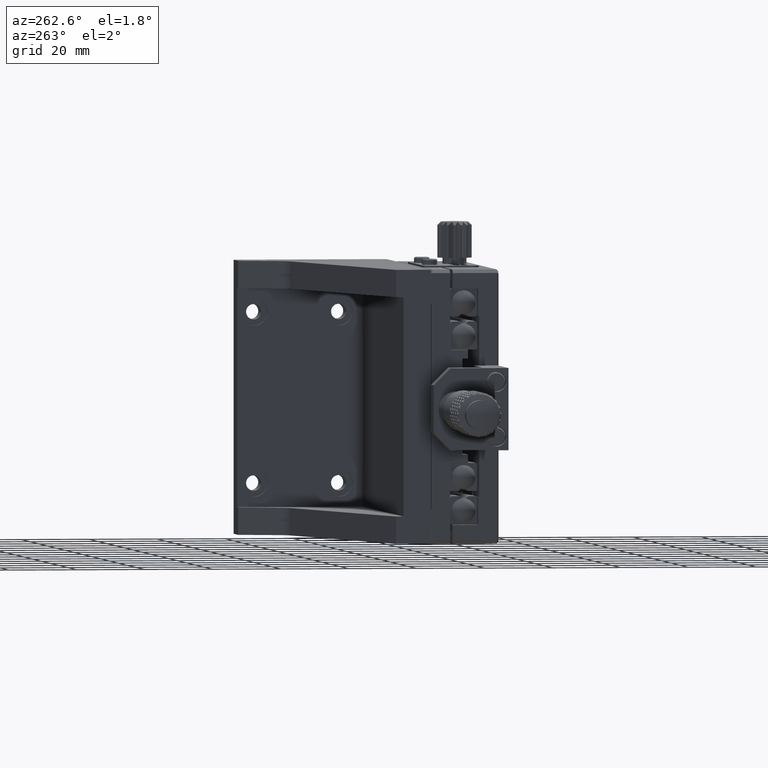
[diagram: clean part render]
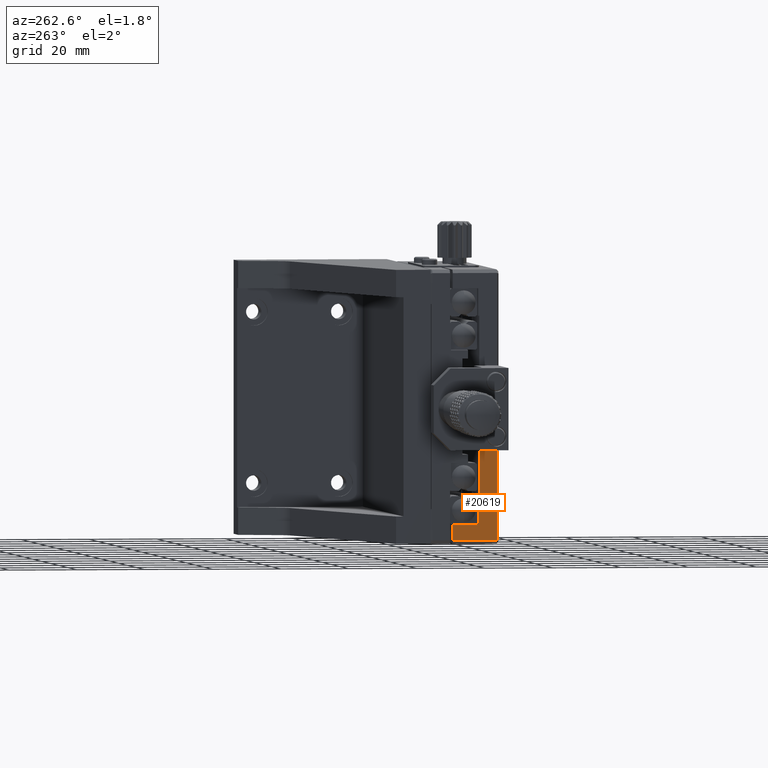
[diagram: same view with one face highlighted and labeled with its STEP entity id]
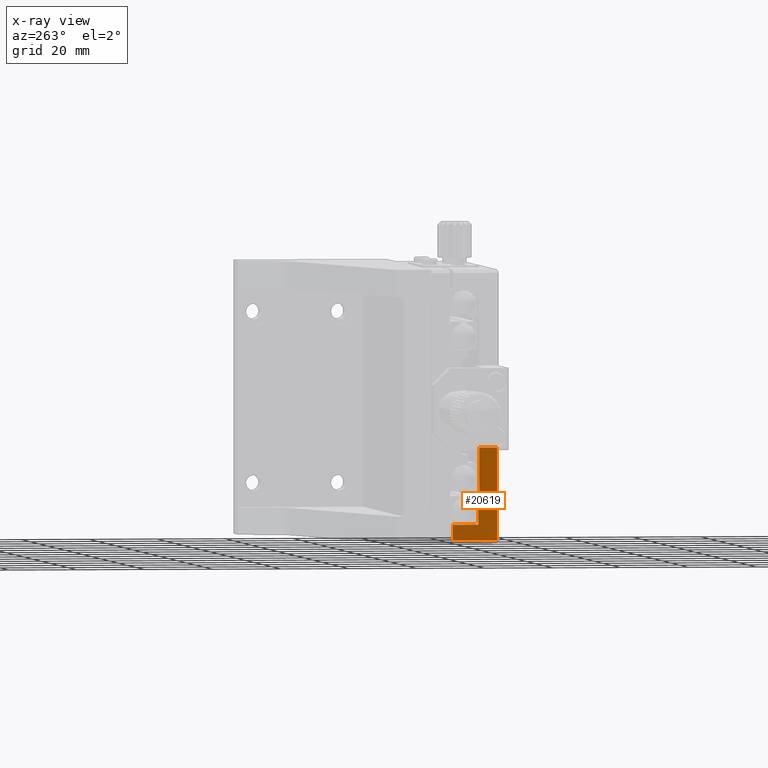
[diagram: x-ray of the same camera — body ghosted, the highlighted face saturated]
A machine part, auxiliary view. The second image highlights one B-rep face of the part: STEP entity #20619.
The next image is the same camera in x-ray: the body ghosted, the highlighted face saturated — about 2% of this face is hidden behind the body in this view.
In plain terms, the highlighted planar face has unit normal (1, 0, 0).
Its self-contained STEP definition (entity closure, byte-faithful):
#341 = DIRECTION ( 'NONE',  ( -0.000000000000000000, -0.000000000000000000, 1.000000000000000000 ) ) ;
#2726 = DIRECTION ( 'NONE',  ( 0.000000000000000000, -1.000000000000000000, -0.000000000000000000 ) ) ;
#3491 = CARTESIAN_POINT ( 'NONE',  ( 24.49999999999999289, 13.19999999999999929, -34.50000000000000000 ) ) ;
#3875 = EDGE_LOOP ( 'NONE', ( #38933, #15681, #38762, #21104, #21451, #15297, #50204, #5662 ) ) ;
#5238 = VERTEX_POINT ( 'NONE', #7315 ) ;
#5662 = ORIENTED_EDGE ( 'NONE', *, *, #32419, .F. ) ;
#5740 = VECTOR ( 'NONE', #23017, 1000.000000000000000 ) ;
#7123 = VECTOR ( 'NONE', #341, 1000.000000000000000 ) ;
#7315 = CARTESIAN_POINT ( 'NONE',  ( 24.49999999999999289, 5.700000000000000178, -34.50000000000000000 ) ) ;
#7849 = CARTESIAN_POINT ( 'NONE',  ( 24.50000000000000000, 5.400000000000000355, -39.00000000000000000 ) ) ;
#8019 = VECTOR ( 'NONE', #23352, 1000.000000000000000 ) ;
#9513 = EDGE_CURVE ( 'NONE', #43843, #12573, #40754, .T. ) ;
#10041 = VECTOR ( 'NONE', #30646, 1000.000000000000000 ) ;
#11480 = CARTESIAN_POINT ( 'NONE',  ( 24.50000000000000000, 14.69999999999999929, -39.00000000000000000 ) ) ;
#11615 = LINE ( 'NONE', #38965, #14733 ) ;
#12573 = VERTEX_POINT ( 'NONE', #15833 ) ;
#13193 = DIRECTION ( 'NONE',  ( -0.000000000000000000, -0.000000000000000000, 1.000000000000000000 ) ) ;
#14733 = VECTOR ( 'NONE', #27057, 1000.000000000000000 ) ;
#14785 = DIRECTION ( 'NONE',  ( 1.000000000000000000, 0.000000000000000000, 0.000000000000000000 ) ) ;
#15297 = ORIENTED_EDGE ( 'NONE', *, *, #41314, .F. ) ;
#15681 = ORIENTED_EDGE ( 'NONE', *, *, #24738, .T. ) ;
#15833 = CARTESIAN_POINT ( 'NONE',  ( 24.50000000000000000, 0.2000000000000008993, -11.99999999999999645 ) ) ;
#16116 = AXIS2_PLACEMENT_3D ( 'NONE', #11480, #14785, #23412 ) ;
#16526 = DIRECTION ( 'NONE',  ( -0.000000000000000000, 1.000000000000000000, 0.000000000000000000 ) ) ;
#16623 = EDGE_CURVE ( 'NONE', #43148, #48304, #32724, .T. ) ;
#17391 = VECTOR ( 'NONE', #2726, 1000.000000000000000 ) ;
#19199 = LINE ( 'NONE', #30321, #5740 ) ;
#20619 = ADVANCED_FACE ( 'NONE', ( #30205 ), #30968, .F. ) ;
#21010 = EDGE_CURVE ( 'NONE', #49937, #43843, #42818, .T. ) ;
#21104 = ORIENTED_EDGE ( 'NONE', *, *, #21010, .F. ) ;
#21402 = LINE ( 'NONE', #25193, #10041 ) ;
#21451 = ORIENTED_EDGE ( 'NONE', *, *, #46448, .F. ) ;
#22589 = CARTESIAN_POINT ( 'NONE',  ( 24.50000000000000000, 5.400000000000000355, -12.00000000000000000 ) ) ;
#22734 = VERTEX_POINT ( 'NONE', #3491 ) ;
#23017 = DIRECTION ( 'NONE',  ( 0.000000000000000000, -1.000000000000000000, -0.000000000000000000 ) ) ;
#23352 = DIRECTION ( 'NONE',  ( -0.000000000000000000, -0.000000000000000000, 1.000000000000000000 ) ) ;
#23412 = DIRECTION ( 'NONE',  ( 0.000000000000000000, 0.000000000000000000, -1.000000000000000000 ) ) ;
#23877 = VECTOR ( 'NONE', #13193, 1000.000000000000000 ) ;
#24171 = VECTOR ( 'NONE', #16526, 1000.000000000000000 ) ;
#24445 = LINE ( 'NONE', #27216, #7123 ) ;
#24738 = EDGE_CURVE ( 'NONE', #43148, #12573, #11615, .T. ) ;
#25105 = LINE ( 'NONE', #47421, #23877 ) ;
#25193 = CARTESIAN_POINT ( 'NONE',  ( 24.49999999999999289, 5.400000000000000355, -26.50000000000000000 ) ) ;
#27057 = DIRECTION ( 'NONE',  ( 0.000000000000000000, 0.000000000000000000, 1.000000000000000000 ) ) ;
#27216 = CARTESIAN_POINT ( 'NONE',  ( 24.50000000000000000, 5.700000000000000178, -39.00000000000000000 ) ) ;
#27711 = CARTESIAN_POINT ( 'NONE',  ( 24.49999999999999289, 5.399999999999999467, -26.50000000000000000 ) ) ;
#28478 = CARTESIAN_POINT ( 'NONE',  ( 24.50000000000000000, 13.19999999999999929, -39.00000000000000000 ) ) ;
#29331 = CARTESIAN_POINT ( 'NONE',  ( 24.50000000000000000, 14.69999999999999929, -12.00000000000000000 ) ) ;
#30205 = FACE_OUTER_BOUND ( 'NONE', #3875, .T. ) ;
#30321 = CARTESIAN_POINT ( 'NONE',  ( 24.50000000000000000, 14.69999999999999929, -34.50000000000000000 ) ) ;
#30646 = DIRECTION ( 'NONE',  ( 0.000000000000000000, -1.000000000000000000, -0.000000000000000000 ) ) ;
#30968 = PLANE ( 'NONE',  #16116 ) ;
#32419 = EDGE_CURVE ( 'NONE', #48304, #22734, #25105, .T. ) ;
#32724 = LINE ( 'NONE', #48188, #24171 ) ;
#33334 = CARTESIAN_POINT ( 'NONE',  ( 24.50000000000000000, 0.1999999999999971523, -39.00000000000000000 ) ) ;
#38411 = EDGE_CURVE ( 'NONE', #22734, #5238, #19199, .T. ) ;
#38762 = ORIENTED_EDGE ( 'NONE', *, *, #9513, .F. ) ;
#38933 = ORIENTED_EDGE ( 'NONE', *, *, #16623, .F. ) ;
#38965 = CARTESIAN_POINT ( 'NONE',  ( 24.50000000000000000, 0.2000000000000010103, -39.00000000000000000 ) ) ;
#40754 = LINE ( 'NONE', #29331, #17391 ) ;
#41265 = VERTEX_POINT ( 'NONE', #49798 ) ;
#41314 = EDGE_CURVE ( 'NONE', #5238, #41265, #24445, .T. ) ;
#42818 = LINE ( 'NONE', #7849, #8019 ) ;
#43148 = VERTEX_POINT ( 'NONE', #33334 ) ;
#43843 = VERTEX_POINT ( 'NONE', #22589 ) ;
#46448 = EDGE_CURVE ( 'NONE', #41265, #49937, #21402, .T. ) ;
#47421 = CARTESIAN_POINT ( 'NONE',  ( 24.50000000000000000, 13.19999999999999929, -39.00000000000000000 ) ) ;
#48188 = CARTESIAN_POINT ( 'NONE',  ( 24.50000000000000000, 14.69999999999999929, -39.00000000000000000 ) ) ;
#48304 = VERTEX_POINT ( 'NONE', #28478 ) ;
#49798 = CARTESIAN_POINT ( 'NONE',  ( 24.49999999999999289, 5.700000000000000178, -26.50000000000000000 ) ) ;
#49937 = VERTEX_POINT ( 'NONE', #27711 ) ;
#50204 = ORIENTED_EDGE ( 'NONE', *, *, #38411, .F. ) ;